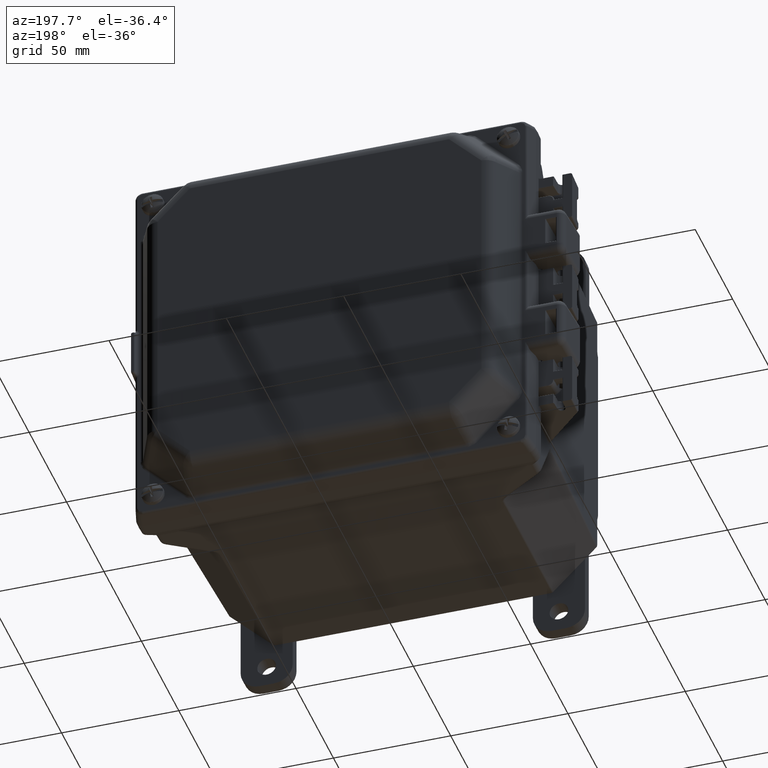
[diagram: clean part render]
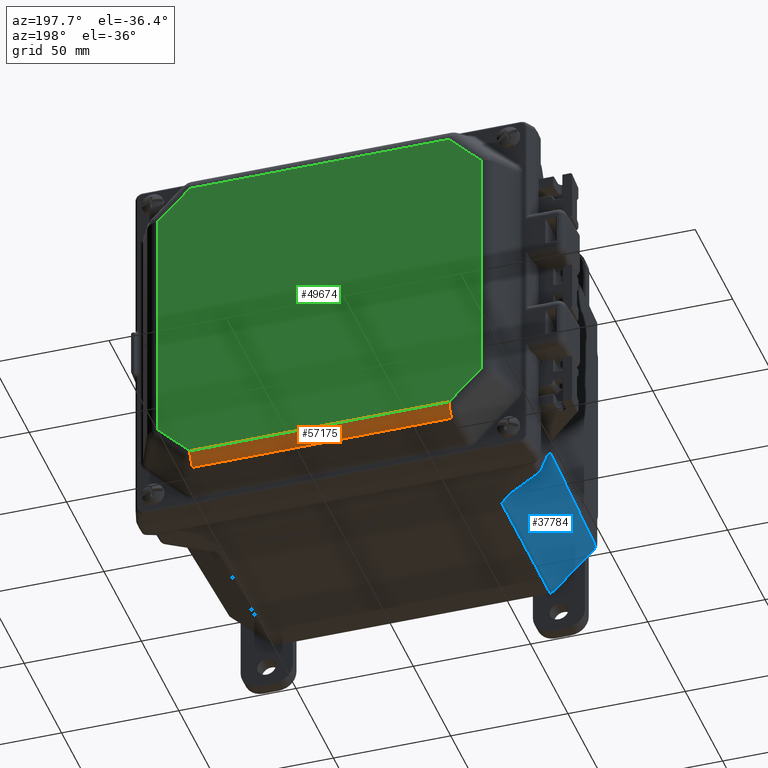
[diagram: same view with three faces highlighted in distinct colors, each labeled with its STEP entity id]
A machine part, auxiliary view with three faces highlighted in distinct colors.
Their STEP definitions:

[orange] entity #57175 — the highlighted cylindrical surface (edge-blend (fillet) strip) has radius 6.35 mm, axis along (1, 0, 0).
#2418 = LINE ( 'NONE', #64369, #112756 ) ;
#3328 = DIRECTION ( 'NONE',  ( -1.000000000000000000, -0.0000000000000000000, -0.0000000000000000000 ) ) ;
#3846 = DIRECTION ( 'NONE',  ( -1.000000000000000000, -0.0000000000000000000, -0.0000000000000000000 ) ) ;
#4423 = AXIS2_PLACEMENT_3D ( 'NONE', #49301, #75150, #23421 ) ;
#6575 = ORIENTED_EDGE ( 'NONE', *, *, #76187, .F. ) ;
#7871 = EDGE_CURVE ( 'NONE', #69561, #62003, #2418, .T. ) ;
#11714 = FACE_OUTER_BOUND ( 'NONE', #43753, .T. ) ;
#13287 = ORIENTED_EDGE ( 'NONE', *, *, #7871, .F. ) ;
#17132 = DIRECTION ( 'NONE',  ( -1.000000000000000000, -1.205704301668454900E-015, 0.0000000000000000000 ) ) ;
#17629 = AXIS2_PLACEMENT_3D ( 'NONE', #55503, #3328, #64232 ) ;
#18787 = CIRCLE ( 'NONE', #17629, 0.2500000000000000000 ) ;
#23421 = DIRECTION ( 'NONE',  ( 0.0000000000000000000, 0.0000000000000000000, -1.000000000000000000 ) ) ;
#26009 = EDGE_CURVE ( 'NONE', #69561, #59481, #18787, .T. ) ;
#29389 = CARTESIAN_POINT ( 'NONE',  ( 2.361634903813531100, 2.833514700916165600, 0.8556545654351747100 ) ) ;
#34910 = LINE ( 'NONE', #29389, #81138 ) ;
#37073 = CARTESIAN_POINT ( 'NONE',  ( -2.174944770606875600, 2.833514700916165600, 0.8556545654351747100 ) ) ;
#38168 = DIRECTION ( 'NONE',  ( 1.000000000000000000, -0.0000000000000000000, -0.0000000000000000000 ) ) ;
#40818 = CARTESIAN_POINT ( 'NONE',  ( 2.174944770606876500, 2.833514700916165600, 0.8556545654351747100 ) ) ;
#43753 = EDGE_LOOP ( 'NONE', ( #46762, #56407, #6575, #13287 ) ) ;
#44821 = EDGE_CURVE ( 'NONE', #65781, #59481, #34910, .T. ) ;
#46762 = ORIENTED_EDGE ( 'NONE', *, *, #26009, .T. ) ;
#49301 = CARTESIAN_POINT ( 'NONE',  ( -1.283968557022203800E-014, 2.606937754157003400, 0.7499999999999998900 ) ) ;
#55503 = CARTESIAN_POINT ( 'NONE',  ( 2.174944770606876500, 2.606937754157003400, 0.7499999999999996700 ) ) ;
#56407 = ORIENTED_EDGE ( 'NONE', *, *, #44821, .F. ) ;
#57175 = ADVANCED_FACE ( 'NONE', ( #11714 ), #78368, .T. ) ;
#58674 = CIRCLE ( 'NONE', #102989, 0.2500000000000000600 ) ;
#59481 = VERTEX_POINT ( 'NONE', #40818 ) ;
#62003 = VERTEX_POINT ( 'NONE', #95380 ) ;
#64232 = DIRECTION ( 'NONE',  ( 0.0000000000000000000, 0.0000000000000000000, -1.000000000000000000 ) ) ;
#64369 = CARTESIAN_POINT ( 'NONE',  ( -1.283968557022203800E-014, 2.606937754157003400, 1.000000000000000000 ) ) ;
#65781 = VERTEX_POINT ( 'NONE', #37073 ) ;
#67561 = CARTESIAN_POINT ( 'NONE',  ( 2.174944770606876500, 2.606937754157003400, 1.000000000000000000 ) ) ;
#69238 = CARTESIAN_POINT ( 'NONE',  ( -2.174944770606875600, 2.606937754157003400, 0.7499999999999998900 ) ) ;
#69561 = VERTEX_POINT ( 'NONE', #67561 ) ;
#75150 = DIRECTION ( 'NONE',  ( 1.000000000000000000, 0.0000000000000000000, 0.0000000000000000000 ) ) ;
#76187 = EDGE_CURVE ( 'NONE', #62003, #65781, #58674, .T. ) ;
#77944 = DIRECTION ( 'NONE',  ( 1.092739197465705100E-015, -1.000000000000000000, 0.0000000000000000000 ) ) ;
#78368 = CYLINDRICAL_SURFACE ( 'NONE', #4423, 0.2500000000000000000 ) ;
#81138 = VECTOR ( 'NONE', #38168, 39.37007874015748100 ) ;
#95380 = CARTESIAN_POINT ( 'NONE',  ( -2.174944770606875600, 2.606937754157003400, 1.000000000000000000 ) ) ;
#102989 = AXIS2_PLACEMENT_3D ( 'NONE', #69238, #17132, #77944 ) ;
#112756 = VECTOR ( 'NONE', #3846, 39.37007874015748100 ) ;

[blue] entity #37784 — the highlighted planar face has unit normal (0.7067, 0.0349, 0.7067).
#2132 = VECTOR ( 'NONE', #24641, 39.37007874015748900 ) ;
#2848 = CARTESIAN_POINT ( 'NONE',  ( -2.402109307492591200, -1.214112770969790100, -3.050177640008246100 ) ) ;
#4486 = EDGE_CURVE ( 'NONE', #36529, #83248, #108332, .T. ) ;
#4545 = VERTEX_POINT ( 'NONE', #90378 ) ;
#4900 = ORIENTED_EDGE ( 'NONE', *, *, #27502, .T. ) ;
#6381 = EDGE_LOOP ( 'NONE', ( #14759, #10760, #14669, #8922, #4900, #53568 ) ) ;
#6613 = CARTESIAN_POINT ( 'NONE',  ( -3.074313210103199400, -3.922523492450538100, -2.244217720611743100 ) ) ;
#6879 = CARTESIAN_POINT ( 'NONE',  ( -2.402109307492591200, -1.214112770969790100, -3.050177640008246100 ) ) ;
#7974 = CARTESIAN_POINT ( 'NONE',  ( -1.852658327914702400, -0.6250000000000000000, -3.628722204638677800 ) ) ;
#8922 = ORIENTED_EDGE ( 'NONE', *, *, #4486, .T. ) ;
#10760 = ORIENTED_EDGE ( 'NONE', *, *, #66812, .T. ) ;
#13369 = VECTOR ( 'NONE', #19572, 39.37007874015748900 ) ;
#14669 = ORIENTED_EDGE ( 'NONE', *, *, #92969, .T. ) ;
#14759 = ORIENTED_EDGE ( 'NONE', *, *, #49653, .T. ) ;
#19572 = DIRECTION ( 'NONE',  ( -0.7071067811865474600, 0.0000000000000000000, 0.7071067811865474600 ) ) ;
#20416 = CARTESIAN_POINT ( 'NONE',  ( -2.398929706782863700, -1.218738647803088800, -3.053128789820753300 ) ) ;
#20450 = CARTESIAN_POINT ( 'NONE',  ( -3.160177640008244200, -1.214112770969790100, -2.292109307492592700 ) ) ;
#22657 = CARTESIAN_POINT ( 'NONE',  ( -2.351294329771116900, -4.124629285600991400, -2.957255520287647200 ) ) ;
#24641 = DIRECTION ( 'NONE',  ( 0.7071067811865474600, -0.0000000000000000000, -0.7071067811865474600 ) ) ;
#25331 = LINE ( 'NONE', #111428, #2132 ) ;
#25465 = PLANE ( 'NONE',  #90584 ) ;
#25528 = CARTESIAN_POINT ( 'NONE',  ( -3.160177640008244200, -1.214112770969790100, -2.292109307492592700 ) ) ;
#26084 = VERTEX_POINT ( 'NONE', #56260 ) ;
#27459 = FACE_OUTER_BOUND ( 'NONE', #6381, .T. ) ;
#27502 = EDGE_CURVE ( 'NONE', #83248, #72972, #25331, .T. ) ;
#29121 = CARTESIAN_POINT ( 'NONE',  ( -2.394535388195385900, -1.226047485886923700, -3.057162158327184200 ) ) ;
#29304 = DIRECTION ( 'NONE',  ( -0.03489585077468929100, 0.9992864213068273200, -0.01445433466142399500 ) ) ;
#32860 = LINE ( 'NONE', #22657, #79109 ) ;
#34198 = DIRECTION ( 'NONE',  ( 0.7071067811865474600, 0.0000000000000000000, -0.7071067811865474600 ) ) ;
#36529 = VERTEX_POINT ( 'NONE', #100357 ) ;
#37784 = ADVANCED_FACE ( 'NONE', ( #27459 ), #25465, .F. ) ;
#49653 = EDGE_CURVE ( 'NONE', #26084, #4545, #32860, .T. ) ;
#53568 = ORIENTED_EDGE ( 'NONE', *, *, #62140, .T. ) ;
#56260 = CARTESIAN_POINT ( 'NONE',  ( -2.393184507989147400, -1.228592403957509600, -3.058387356670819300 ) ) ;
#62140 = EDGE_CURVE ( 'NONE', #72972, #26084, #93860, .T. ) ;
#63789 = CARTESIAN_POINT ( 'NONE',  ( -3.165936163378194800, -1.223500913149210300, -2.285887146723417600 ) ) ;
#66812 = EDGE_CURVE ( 'NONE', #4545, #105573, #100492, .T. ) ;
#71656 = CARTESIAN_POINT ( 'NONE',  ( -1.771233526995483800, -3.922523492450538100, -3.547297403719458700 ) ) ;
#72486 = CARTESIAN_POINT ( 'NONE',  ( -2.400514182714950500, -1.216357997376613000, -3.051661883323715200 ) ) ;
#72517 = CARTESIAN_POINT ( 'NONE',  ( -3.163139676787105600, -1.218593467041253300, -2.288925989630255800 ) ) ;
#72972 = VERTEX_POINT ( 'NONE', #6879 ) ;
#79109 = VECTOR ( 'NONE', #91472, 39.37007874015748900 ) ;
#81199 = CARTESIAN_POINT ( 'NONE',  ( -2.395954176238095800, -1.223567343017379900, -3.055865853196190400 ) ) ;
#81388 = CARTESIAN_POINT ( 'NONE',  ( -3.165884141238199900, -1.300275115116253000, -2.282147642206993100 ) ) ;
#83248 = VERTEX_POINT ( 'NONE', #25528 ) ;
#86295 = DIRECTION ( 'NONE',  ( 0.7066760308408345200, 0.03489949670250105200, 0.7066760308408345200 ) ) ;
#89968 = CARTESIAN_POINT ( 'NONE',  ( -2.393184507989147400, -1.228592403957509600, -3.058387356670819300 ) ) ;
#90378 = CARTESIAN_POINT ( 'NONE',  ( -2.354217720611742100, -3.922523492450536800, -2.964313210103200800 ) ) ;
#90584 = AXIS2_PLACEMENT_3D ( 'NONE', #7974, #86295, #34198 ) ;
#91254 = LINE ( 'NONE', #81388, #94015 ) ;
#91472 = DIRECTION ( 'NONE',  ( 0.01445433466142399500, -0.9992864213068273200, 0.03489585077468929100 ) ) ;
#92969 = EDGE_CURVE ( 'NONE', #105573, #36529, #91254, .T. ) ;
#93860 = B_SPLINE_CURVE_WITH_KNOTS ( 'NONE', 3,
 ( #2848, #72486, #20416, #81199, #29121, #89968 ),
 .UNSPECIFIED., .F., .F.,
 ( 4, 2, 4 ),
 ( -9.722422112015381300E-006, 0.0002286806113322425200, 0.0004670836447765004500 ),
 .UNSPECIFIED. ) ;
#94015 = VECTOR ( 'NONE', #29304, 39.37007874015748900 ) ;
#100357 = CARTESIAN_POINT ( 'NONE',  ( -3.168387356671110500, -1.228592403958112200, -2.283184507988826400 ) ) ;
#100492 = LINE ( 'NONE', #71656, #13369 ) ;
#105573 = VERTEX_POINT ( 'NONE', #6613 ) ;
#107224 = CARTESIAN_POINT ( 'NONE',  ( -3.168387356671110500, -1.228592403958112200, -2.283184507988826400 ) ) ;
#108332 = B_SPLINE_CURVE_WITH_KNOTS ( 'NONE', 3,
 ( #107224, #63789, #72517, #20450 ),
 .UNSPECIFIED., .F., .F.,
 ( 4, 4 ),
 ( 0.001956897110844129000, 0.002432667185621275200 ),
 .UNSPECIFIED. ) ;
#111428 = CARTESIAN_POINT ( 'NONE',  ( -1.838111535388430800, -1.214112770969790100, -3.614175412112406300 ) ) ;

[green] entity #49674 — the highlighted planar face has unit normal (0, -1, 0).
#2418 = LINE ( 'NONE', #64369, #112756 ) ;
#3782 = DIRECTION ( 'NONE',  ( -0.0000000000000000000, 1.000000000000000000, -0.0000000000000000000 ) ) ;
#3846 = DIRECTION ( 'NONE',  ( -1.000000000000000000, -0.0000000000000000000, -0.0000000000000000000 ) ) ;
#4189 = DIRECTION ( 'NONE',  ( 0.7071067811865511300, 0.7071067811865439100, -0.0000000000000000000 ) ) ;
#5518 = PLANE ( 'NONE',  #85611 ) ;
#7871 = EDGE_CURVE ( 'NONE', #69561, #62003, #2418, .T. ) ;
#8102 = ORIENTED_EDGE ( 'NONE', *, *, #55849, .T. ) ;
#8872 = EDGE_CURVE ( 'NONE', #94321, #28704, #41792, .T. ) ;
#10806 = LINE ( 'NONE', #103508, #103414 ) ;
#11726 = EDGE_CURVE ( 'NONE', #91868, #94321, #16785, .T. ) ;
#11936 = VECTOR ( 'NONE', #3782, 39.37007874015748100 ) ;
#14676 = LINE ( 'NONE', #21323, #11936 ) ;
#15199 = ORIENTED_EDGE ( 'NONE', *, *, #7871, .T. ) ;
#16785 = LINE ( 'NONE', #19207, #106665 ) ;
#17885 = CARTESIAN_POINT ( 'NONE',  ( -0.3186999923777130700, 5.100582517141565300, 1.000000000000000000 ) ) ;
#19207 = CARTESIAN_POINT ( 'NONE',  ( -5.100582517141591900, 0.3186999923777420500, 1.000000000000000000 ) ) ;
#21323 = CARTESIAN_POINT ( 'NONE',  ( 2.716937754157002800, 5.419282509519269400, 1.000000000000000000 ) ) ;
#23035 = DIRECTION ( 'NONE',  ( -1.000000000000000000, 0.0000000000000000000, 0.0000000000000000000 ) ) ;
#24403 = CARTESIAN_POINT ( 'NONE',  ( 2.716937754157002800, -2.064944770606882900, 1.000000000000000000 ) ) ;
#25008 = EDGE_CURVE ( 'NONE', #62003, #55862, #108472, .T. ) ;
#25493 = EDGE_LOOP ( 'NONE', ( #90959, #8102, #96729, #15199, #26059, #58198, #37399, #85313 ) ) ;
#26059 = ORIENTED_EDGE ( 'NONE', *, *, #25008, .T. ) ;
#27025 = EDGE_CURVE ( 'NONE', #28704, #84534, #58085, .T. ) ;
#28704 = VERTEX_POINT ( 'NONE', #54671 ) ;
#29078 = LINE ( 'NONE', #17885, #95779 ) ;
#34921 = VECTOR ( 'NONE', #4189, 39.37007874015748100 ) ;
#35600 = FACE_OUTER_BOUND ( 'NONE', #25493, .T. ) ;
#37399 = ORIENTED_EDGE ( 'NONE', *, *, #11726, .T. ) ;
#40105 = CARTESIAN_POINT ( 'NONE',  ( -2.716937754157002800, -2.064944770606870400, 1.000000000000000000 ) ) ;
#41792 = LINE ( 'NONE', #112075, #108528 ) ;
#42121 = VERTEX_POINT ( 'NONE', #82896 ) ;
#49674 = ADVANCED_FACE ( 'NONE', ( #35600 ), #5518, .F. ) ;
#51354 = DIRECTION ( 'NONE',  ( -0.0000000000000000000, -1.000000000000000000, -0.0000000000000000000 ) ) ;
#54671 = CARTESIAN_POINT ( 'NONE',  ( 2.174944770606877900, -2.606937754157002000, 1.000000000000000000 ) ) ;
#55849 = EDGE_CURVE ( 'NONE', #84534, #42121, #14676, .T. ) ;
#55862 = VERTEX_POINT ( 'NONE', #90886 ) ;
#58085 = LINE ( 'NONE', #90915, #34921 ) ;
#58198 = ORIENTED_EDGE ( 'NONE', *, *, #106069, .T. ) ;
#60670 = DIRECTION ( 'NONE',  ( 1.000000000000000000, -0.0000000000000000000, -0.0000000000000000000 ) ) ;
#61308 = DIRECTION ( 'NONE',  ( -0.7071067811865474600, -0.7071067811865474600, -0.0000000000000000000 ) ) ;
#62003 = VERTEX_POINT ( 'NONE', #95380 ) ;
#64369 = CARTESIAN_POINT ( 'NONE',  ( -1.283968557022203800E-014, 2.606937754157003400, 1.000000000000000000 ) ) ;
#66407 = CARTESIAN_POINT ( 'NONE',  ( -1.283968557022203800E-014, 5.419282509519269400, 1.000000000000000000 ) ) ;
#67561 = CARTESIAN_POINT ( 'NONE',  ( 2.174944770606876500, 2.606937754157003400, 1.000000000000000000 ) ) ;
#69561 = VERTEX_POINT ( 'NONE', #67561 ) ;
#71282 = DIRECTION ( 'NONE',  ( 0.7071067811865440200, -0.7071067811865510100, -0.0000000000000000000 ) ) ;
#75135 = DIRECTION ( 'NONE',  ( 0.0000000000000000000, 0.0000000000000000000, -1.000000000000000000 ) ) ;
#78709 = DIRECTION ( 'NONE',  ( -0.7071067811865513500, 0.7071067811865436900, -0.0000000000000000000 ) ) ;
#82896 = CARTESIAN_POINT ( 'NONE',  ( 2.716937754157002800, 2.064944770606882900, 1.000000000000000000 ) ) ;
#84534 = VERTEX_POINT ( 'NONE', #24403 ) ;
#84627 = EDGE_CURVE ( 'NONE', #42121, #69561, #29078, .T. ) ;
#85313 = ORIENTED_EDGE ( 'NONE', *, *, #8872, .T. ) ;
#85611 = AXIS2_PLACEMENT_3D ( 'NONE', #66407, #75135, #23035 ) ;
#87503 = CARTESIAN_POINT ( 'NONE',  ( 0.3186999923776887600, 5.100582517141568000, 1.000000000000000000 ) ) ;
#87953 = VECTOR ( 'NONE', #61308, 39.37007874015748900 ) ;
#90886 = CARTESIAN_POINT ( 'NONE',  ( -2.716937754157002800, 2.064944770606875800, 1.000000000000000000 ) ) ;
#90915 = CARTESIAN_POINT ( 'NONE',  ( 5.100582517141556400, 0.3186999923776469600, 1.000000000000000000 ) ) ;
#90959 = ORIENTED_EDGE ( 'NONE', *, *, #27025, .T. ) ;
#91868 = VERTEX_POINT ( 'NONE', #40105 ) ;
#93939 = CARTESIAN_POINT ( 'NONE',  ( -2.174944770606876500, -2.606937754157002000, 1.000000000000000000 ) ) ;
#94321 = VERTEX_POINT ( 'NONE', #93939 ) ;
#95380 = CARTESIAN_POINT ( 'NONE',  ( -2.174944770606875600, 2.606937754157003400, 1.000000000000000000 ) ) ;
#95779 = VECTOR ( 'NONE', #78709, 39.37007874015748100 ) ;
#96729 = ORIENTED_EDGE ( 'NONE', *, *, #84627, .T. ) ;
#103414 = VECTOR ( 'NONE', #51354, 39.37007874015748100 ) ;
#103508 = CARTESIAN_POINT ( 'NONE',  ( -2.716937754157002800, 5.419282509519269400, 1.000000000000000000 ) ) ;
#106069 = EDGE_CURVE ( 'NONE', #55862, #91868, #10806, .T. ) ;
#106665 = VECTOR ( 'NONE', #71282, 39.37007874015748100 ) ;
#108472 = LINE ( 'NONE', #87503, #87953 ) ;
#108528 = VECTOR ( 'NONE', #60670, 39.37007874015748100 ) ;
#112075 = CARTESIAN_POINT ( 'NONE',  ( -1.283968557022203800E-014, -2.606937754157002000, 1.000000000000000000 ) ) ;
#112756 = VECTOR ( 'NONE', #3846, 39.37007874015748100 ) ;